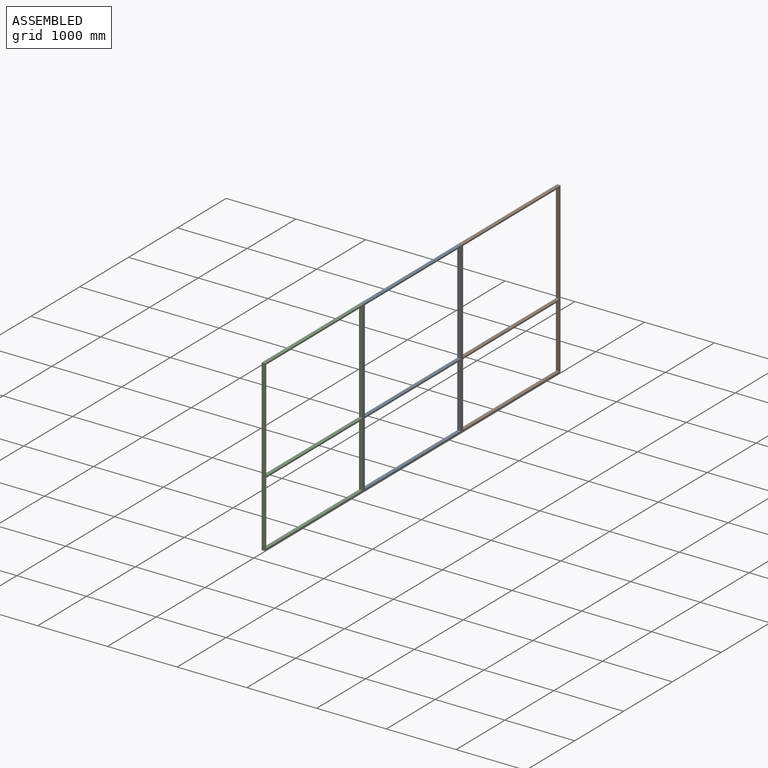
[diagram: assembled view]
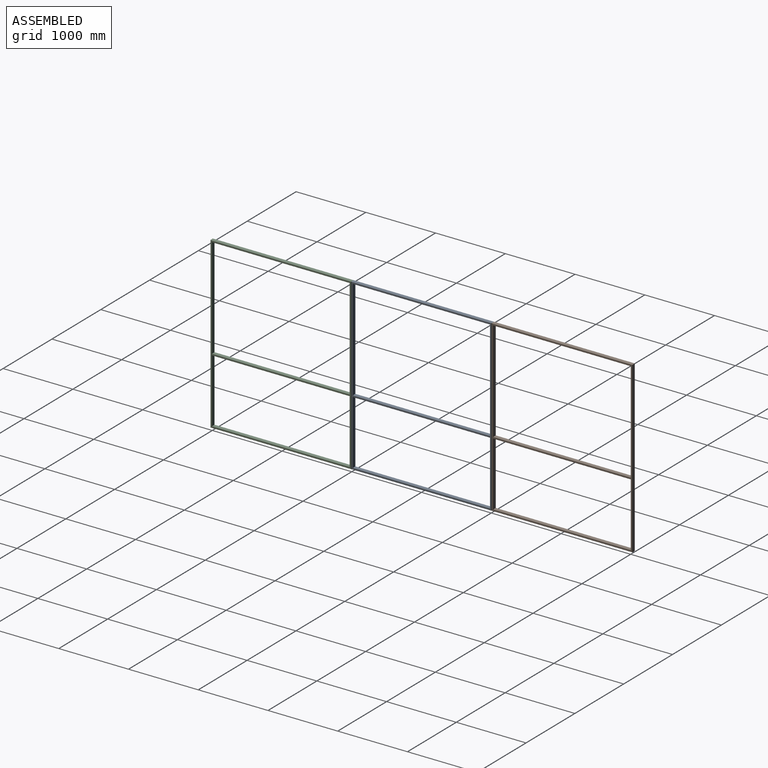
[diagram: assembled view, second angle]
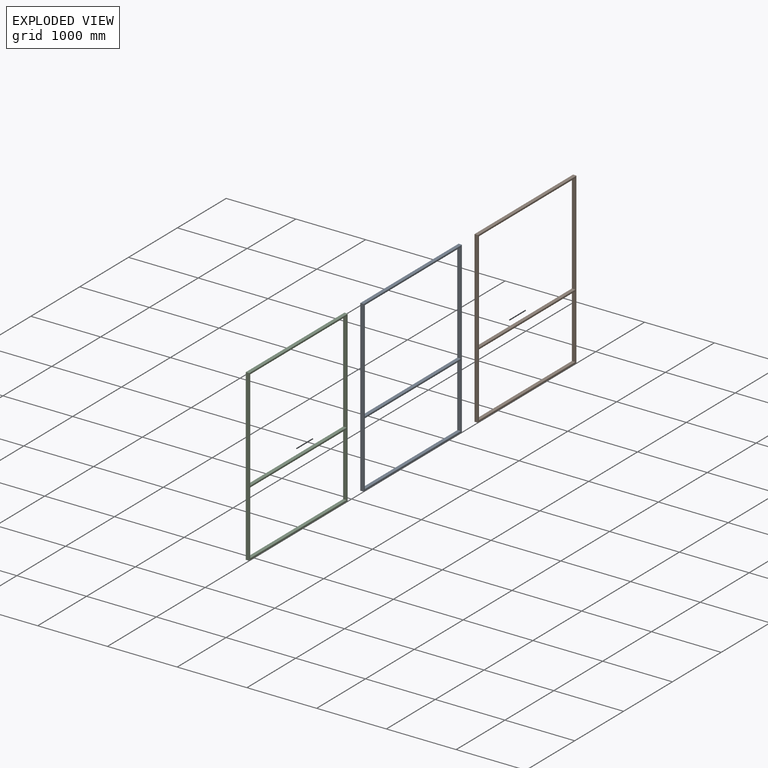
[diagram: exploded view]
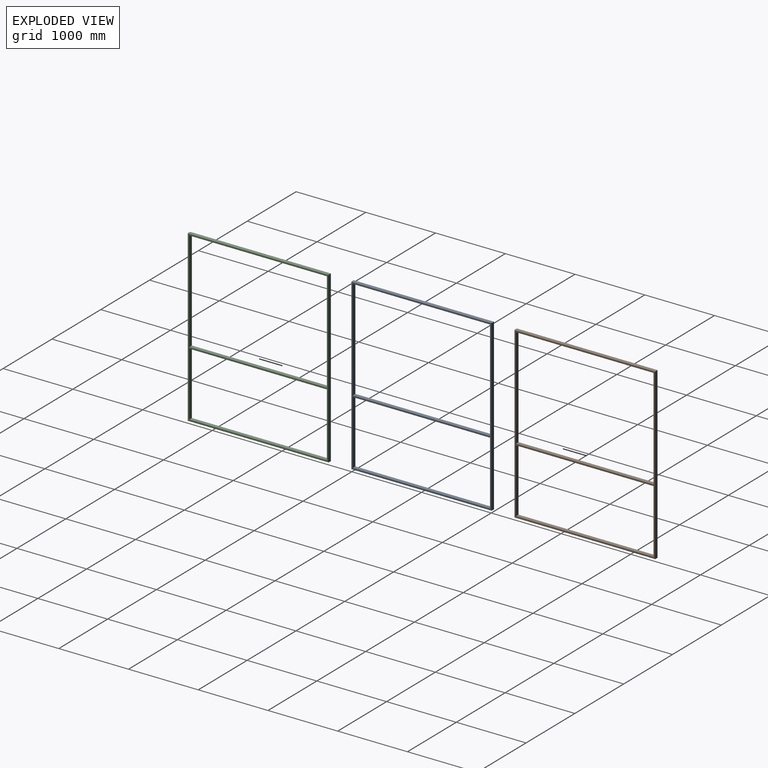
[diagram: exploded view, second angle]
ASSEMBLY  parts=3 mates=2
PART A: 116 faces, bbox 50.8x2013x2432.1 mm
  f0: plane 1962.15x44.45mm, normal (0,0,1), area 87217.6mm2, adj f2,f6,f11,f12
  f1: plane 1962.15x44.45mm, normal (0,0,-1), area 87217.6mm2, adj f2,f5,f12,f14
  f2: plane 1441.45x44.45mm, normal (0,-1,0), area 64072.5mm2, adj f0,f1,f23,f25
  f3: plane 2012.95x44.45mm, normal (0,0,1), area 89475.6mm2, adj f4,f15,f21,f27
  f4: cylinder r=3.17mm len=2012.95mm, axis (0,1,0), area 10027.8mm2, adj f3,f20,f22,f33
  f5: cylinder r=3.17mm len=1968.5mm, axis (0,1,0), area 9797.4mm2, adj f1,f19,f23,f33
  f6: cylinder r=3.17mm len=1968.5mm, axis (0,1,0), area 9797.4mm2, adj f0,f7,f19,f23
  f7: plane 1968.5x19.05mm, normal (1,0,0), area 37499.9mm2, adj f6,f8,f19,f23
  f8: cylinder r=3.17mm len=1968.5mm, axis (0,1,0), area 9797.4mm2, adj f7,f9,f19,f23
  f9: plane 1962.15x44.45mm, normal (0,0,-1), area 87217.6mm2, adj f8,f13,f18,f24
  f10: plane 1968.5x19.05mm, normal (-1,0,0), area 37499.9mm2, adj f11,f13,f17,f25
  f11: cylinder r=3.17mm len=1968.5mm, axis (0,1,0), area 9797.4mm2, adj f0,f10,f17,f25
  f12: plane 1441.45x44.45mm, normal (0,1,0), area 64072.5mm2, adj f0,f1,f17,f19
  f13: cylinder r=3.17mm len=1968.5mm, axis (0,1,0), area 9797.4mm2, adj f9,f10,f17,f25
  f14: cylinder r=3.17mm len=1968.5mm, axis (0,1,0), area 9797.4mm2, adj f1,f17,f25,f29
  f15: cylinder r=3.17mm len=2012.95mm, axis (0,1,0), area 10027.8mm2, adj f3,f16,f26,f29
  f16: cylinder r=3.17mm len=2432.05mm, axis (0,0,1), area 12118mm2, adj f15,f21,f28,f29
  f17: cylinder r=3.17mm len=2387.6mm, axis (0,0,1), area 11772.4mm2, adj f10,f11,f12,f13,f14,f18,f29,f30
  f18: plane 914.4x44.45mm, normal (0,1,0), area 40645.1mm2, adj f9,f17,f19,f31
  f19: cylinder r=3.17mm len=2387.6mm, axis (0,0,1), area 11772.4mm2, adj f5,f6,f7,f8,f12,f18,f32,f33
  f20: cylinder r=3.17mm len=2432.05mm, axis (0,0,1), area 12118mm2, adj f4,f21,f33,f34
  f21: plane 2432.05x44.45mm, normal (0,-1,0), area 108104.6mm2, adj f3,f16,f20,f35
  f22: cylinder r=3.17mm len=2432.05mm, axis (0,0,-1), area 12118mm2, adj f4,f27,f33,f34
  f23: cylinder r=3.17mm len=2387.6mm, axis (0,0,-1), area 11772.4mm2, adj f2,f5,f6,f7,f8,f24,f32,f33
  f24: plane 914.4x44.45mm, normal (0,-1,0), area 40645.1mm2, adj f9,f23,f25,f31
  f25: cylinder r=3.17mm len=2387.6mm, axis (0,0,-1), area 11772.4mm2, adj f2,f10,f11,f13,f14,f24,f29,f30
  f26: cylinder r=3.17mm len=2432.05mm, axis (0,0,-1), area 12118mm2, adj f15,f27,f28,f29
  f27: plane 2432.05x44.45mm, normal (0,1,0), area 108104.6mm2, adj f3,f22,f26,f35
  f28: cylinder r=3.17mm len=2012.95mm, axis (0,-1,0), area 10027.8mm2, adj f16,f26,f29,f35
  f29: plane 2425.7x2006.6mm, normal (-1,0,0), area 167419mm2, adj f14,f15,f16,f17,f25,f26,f28,f30
  f30: cylinder r=3.17mm len=1968.5mm, axis (0,-1,0), area 9797.4mm2, adj f17,f25,f29,f31
  f31: plane 1962.15x44.45mm, normal (0,0,1), area 87217.6mm2, adj f18,f24,f30,f32
  f32: cylinder r=3.17mm len=1968.5mm, axis (0,-1,0), area 9797.4mm2, adj f19,f23,f31,f33
  f33: plane 2425.7x2006.6mm, normal (1,0,0), area 167419mm2, adj f4,f5,f19,f20,f22,f23,f32,f34
  f34: cylinder r=3.17mm len=2012.95mm, axis (0,-1,0), area 10027.8mm2, adj f20,f22,f33,f35
  f35: plane 2012.95x44.45mm, normal (0,0,-1), area 89475.6mm2, adj f21,f27,f28,f34
  f36: cylinder r=2.54mm len=1971.45mm, axis (0,-1,0), area 7852.8mm2, adj f37,f43,f50,f80
  f37: plane 1966.37x41.5mm, normal (0,0,-1), area 81611.3mm2, adj f36,f38,f51,f78
  f38: cylinder r=2.54mm len=1971.45mm, axis (0,-1,0), area 7852.8mm2, adj f37,f39,f52,f76
  f39: plane 2422.75x2003.65mm, normal (-1,0,0), area 141381.1mm2, adj f38,f40,f48,f49,f52,f53,f57,f60
  f40: cylinder r=2.54mm len=2008.73mm, axis (0,-1,0), area 8007.1mm2, adj f39,f41,f53,f72
  f41: plane 2008.73x41.5mm, normal (0,0,1), area 83369.7mm2, adj f40,f42,f54,f71
  f42: cylinder r=2.54mm len=2008.73mm, axis (0,-1,0), area 8007.1mm2, adj f41,f43,f55,f70
  f43: plane 2422.75x2003.65mm, normal (1,0,0), area 141381.1mm2, adj f36,f42,f44,f45,f50,f55,f56,f57
  f44: cylinder r=2.54mm len=21.18mm, axis (0,0,-1), area 77.2mm2, adj f43,f46,f94,f98
  f45: cylinder r=2.54mm len=1446.28mm, axis (0,0,-1), area 5763.4mm2, adj f43,f47,f87,f99,f100
  f46: plane 41.5x21.18mm, normal (0,1,0), area 879.2mm2, adj f44,f48,f93,f95
  f47: plane 1443.56x41.5mm, normal (0,1,0), area 59912.9mm2, adj f45,f49,f86,f99
  f48: cylinder r=2.54mm len=21.18mm, axis (0,0,-1), area 77.2mm2, adj f39,f46,f92,f96
  f49: cylinder r=2.54mm len=1446.28mm, axis (0,0,-1), area 5763.4mm2, adj f39,f47,f85,f97,f99
  f50: cylinder r=2.54mm len=919.23mm, axis (0,0,-1), area 3660.6mm2, adj f36,f43,f51,f88,f91
  f51: plane 916.51x41.5mm, normal (0,1,0), area 38038.4mm2, adj f37,f50,f52,f91
  f52: cylinder r=2.54mm len=919.23mm, axis (0,0,-1), area 3660.6mm2, adj f38,f39,f51,f90,f91
  f53: cylinder r=2.54mm len=2427.83mm, axis (0,0,-1), area 9679.2mm2, adj f39,f40,f54,f84
  f54: plane 2427.83x41.5mm, normal (0,-1,0), area 100763.8mm2, adj f41,f53,f55,f83
  f55: cylinder r=2.54mm len=2427.83mm, axis (0,0,-1), area 9679.2mm2, adj f42,f43,f54,f82
  f56: cylinder r=3.17mm len=10.12mm, axis (0,1,0), area 10.3mm2, adj f43,f57,f58,f80
  f57: plane 46.58x4.65mm, normal (0,-1,0), area 100.8mm2, adj f39,f43,f56,f58,f59,f60,f61,f62
  f58: plane 44.45x10.59mm, normal (0,0,-1), area 470.4mm2, adj f56,f57,f60,f76,f78,f80
  f59: cylinder r=2.54mm len=10.59mm, axis (0,1,0), area 38.6mm2, adj f43,f57,f62,f81
  f60: cylinder r=3.17mm len=10.12mm, axis (0,1,0), area 10.3mm2, adj f39,f57,f58,f76
  f61: cylinder r=2.54mm len=10.59mm, axis (0,1,0), area 38.6mm2, adj f39,f57,f62,f77
  f62: plane 41.5x10.59mm, normal (0,0,1), area 439.6mm2, adj f57,f59,f61,f79
  f63: cylinder r=2.54mm len=10.59mm, axis (0,1,0), area 38.6mm2, adj f43,f64,f68,f81
  f64: plane 41.5x10.59mm, normal (0,0,-1), area 439.6mm2, adj f63,f65,f68,f79
  f65: cylinder r=2.54mm len=10.59mm, axis (0,1,0), area 38.6mm2, adj f39,f64,f68,f77
  f66: plane 44.45x10.59mm, normal (0,0,1), area 470.4mm2, adj f67,f68,f69,f73,f74,f75
  f67: cylinder r=3.17mm len=10.12mm, axis (0,1,0), area 10.3mm2, adj f39,f66,f68,f73
  f68: plane 46.58x4.65mm, normal (0,-1,0), area 100.8mm2, adj f39,f43,f63,f64,f65,f66,f67,f69
  f69: cylinder r=3.17mm len=10.12mm, axis (0,1,0), area 10.3mm2, adj f43,f66,f68,f75
  f70: cylinder r=2.54mm len=2427.83mm, axis (0,0,1), area 9679.2mm2, adj f42,f43,f71,f82
  f71: plane 2427.83x41.5mm, normal (0,1,0), area 100763.8mm2, adj f41,f70,f72,f83
  f72: cylinder r=2.54mm len=2427.83mm, axis (0,0,1), area 9679.2mm2, adj f39,f40,f71,f84
  f73: cylinder r=2.54mm len=1446.28mm, axis (0,0,1), area 5763.4mm2, adj f39,f66,f67,f74,f85
  f74: plane 1443.56x41.5mm, normal (0,-1,0), area 59912.9mm2, adj f66,f73,f75,f86
  f75: cylinder r=2.54mm len=1446.28mm, axis (0,0,1), area 5763.4mm2, adj f43,f66,f69,f74,f87
  f76: cylinder r=2.54mm len=919.23mm, axis (0,0,1), area 3660.6mm2, adj f38,f39,f58,f60,f78
  f77: cylinder r=2.54mm len=21.18mm, axis (0,0,1), area 77.2mm2, adj f39,f61,f65,f79
  f78: plane 916.51x41.5mm, normal (0,-1,0), area 38038.4mm2, adj f37,f58,f76,f80
  f79: plane 41.5x21.18mm, normal (0,-1,0), area 879.2mm2, adj f62,f64,f77,f81
  f80: cylinder r=2.54mm len=919.23mm, axis (0,0,1), area 3660.6mm2, adj f36,f43,f56,f58,f78
  f81: cylinder r=2.54mm len=21.18mm, axis (0,0,1), area 77.2mm2, adj f43,f59,f63,f79
  f82: cylinder r=2.54mm len=2008.73mm, axis (0,1,0), area 8007.1mm2, adj f43,f55,f70,f83
  f83: plane 2008.73x41.5mm, normal (0,0,-1), area 83369.7mm2, adj f54,f71,f82,f84
  f84: cylinder r=2.54mm len=2008.73mm, axis (0,1,0), area 8007.1mm2, adj f39,f53,f72,f83
  f85: cylinder r=2.54mm len=1971.45mm, axis (0,1,0), area 7852.8mm2, adj f39,f49,f73,f86
  f86: plane 1966.37x41.5mm, normal (0,0,1), area 81611.3mm2, adj f47,f74,f85,f87
  f87: cylinder r=2.54mm len=1971.45mm, axis (0,1,0), area 7852.8mm2, adj f43,f45,f75,f86
  f88: cylinder r=3.17mm len=10.12mm, axis (0,1,0), area 10.3mm2, adj f43,f50,f89,f91
  f89: plane 46.58x4.65mm, normal (0,1,0), area 100.8mm2, adj f39,f43,f88,f90,f91,f92,f93,f94
  f90: cylinder r=3.17mm len=10.12mm, axis (0,1,0), area 10.3mm2, adj f39,f52,f89,f91
  f91: plane 44.45x10.59mm, normal (0,0,-1), area 470.4mm2, adj f50,f51,f52,f88,f89,f90
  f92: cylinder r=2.54mm len=10.59mm, axis (0,1,0), area 38.6mm2, adj f39,f48,f89,f93
  f93: plane 41.5x10.59mm, normal (0,0,1), area 439.6mm2, adj f46,f89,f92,f94
  f94: cylinder r=2.54mm len=10.59mm, axis (0,1,0), area 38.6mm2, adj f43,f44,f89,f93
  f95: plane 41.5x10.59mm, normal (0,0,-1), area 439.6mm2, adj f46,f96,f98,f101
  f96: cylinder r=2.54mm len=10.59mm, axis (0,1,0), area 38.6mm2, adj f39,f48,f95,f101
  f97: cylinder r=3.17mm len=10.12mm, axis (0,1,0), area 10.3mm2, adj f39,f49,f99,f101
  f98: cylinder r=2.54mm len=10.59mm, axis (0,1,0), area 38.6mm2, adj f43,f44,f95,f101
  f99: plane 44.45x10.59mm, normal (0,0,1), area 470.4mm2, adj f45,f47,f49,f97,f100,f101
  f100: cylinder r=3.17mm len=10.12mm, axis (0,1,0), area 10.3mm2, adj f43,f45,f99,f101
  f101: plane 46.58x4.65mm, normal (0,1,0), area 100.8mm2, adj f39,f43,f95,f96,f97,f98,f99,f100
  f102: cylinder r=3.17mm len=20.24mm, axis (0,0,1), area 20.7mm2, adj f103,f105,f111,f112
  f103: plane 44.45x21.18mm, normal (0,1,0), area 940.7mm2, adj f102,f104,f105,f106,f107,f109,f110,f111
  f104: cylinder r=3.17mm len=20.24mm, axis (0,0,1), area 20.7mm2, adj f103,f106,f107,f108
  f105: cylinder r=2.54mm len=1962.52mm, axis (0,1,0), area 7829mm2, adj f102,f103,f110,f112,f114,f115
  f106: cylinder r=2.54mm len=1962.52mm, axis (0,1,0), area 7829mm2, adj f103,f104,f108,f110,f113,f114
  f107: cylinder r=2.54mm len=1962.52mm, axis (0,1,0), area 7829mm2, adj f103,f104,f108,f109,f113,f114
  f108: plane 1962.52x16.1mm, normal (1,0,0), area 31603.6mm2, adj f104,f106,f107,f113
  f109: plane 1962.15x41.5mm, normal (0,0,1), area 81436.3mm2, adj f103,f107,f111,f114
  f110: plane 1962.15x41.5mm, normal (0,0,-1), area 81436.3mm2, adj f103,f105,f106,f114
  f111: cylinder r=2.54mm len=1962.52mm, axis (0,1,0), area 7829mm2, adj f102,f103,f109,f112,f114,f115
  f112: plane 1962.52x16.1mm, normal (-1,0,0), area 31603.6mm2, adj f102,f105,f111,f115
  f113: cylinder r=3.17mm len=20.24mm, axis (0,0,-1), area 20.7mm2, adj f106,f107,f108,f114
  f114: plane 44.45x21.18mm, normal (0,-1,0), area 940.7mm2, adj f105,f106,f107,f109,f110,f111,f113,f115
  f115: cylinder r=3.17mm len=20.24mm, axis (0,0,-1), area 20.7mm2, adj f105,f111,f112,f114
PART B: 116 faces, bbox 50.8x2019.3x2432.1 mm
  f0: plane 1968.5x44.45mm, normal (0,0,1), area 87499.8mm2, adj f2,f6,f11,f12
  f1: plane 1968.5x44.45mm, normal (0,0,-1), area 87499.8mm2, adj f2,f5,f12,f14
  f2: plane 1441.45x44.45mm, normal (0,-1,0), area 64072.5mm2, adj f0,f1,f23,f25
  f3: plane 2019.3x44.45mm, normal (0,0,1), area 89757.9mm2, adj f4,f15,f21,f27
  f4: cylinder r=3.17mm len=2019.3mm, axis (0,1,0), area 10059.4mm2, adj f3,f20,f22,f33
  f5: cylinder r=3.17mm len=1974.85mm, axis (0,1,0), area 9829.1mm2, adj f1,f19,f23,f33
  f6: cylinder r=3.17mm len=1974.85mm, axis (0,1,0), area 9829.1mm2, adj f0,f7,f19,f23
  f7: plane 1974.85x19.05mm, normal (1,0,0), area 37620.9mm2, adj f6,f8,f19,f23
  f8: cylinder r=3.17mm len=1974.85mm, axis (0,1,0), area 9829.1mm2, adj f7,f9,f19,f23
  f9: plane 1968.5x44.45mm, normal (0,0,-1), area 87499.8mm2, adj f8,f13,f18,f24
  f10: plane 1974.85x19.05mm, normal (-1,0,0), area 37620.9mm2, adj f11,f13,f17,f25
  f11: cylinder r=3.17mm len=1974.85mm, axis (0,1,0), area 9829.1mm2, adj f0,f10,f17,f25
  f12: plane 1441.45x44.45mm, normal (0,1,0), area 64072.5mm2, adj f0,f1,f17,f19
  f13: cylinder r=3.17mm len=1974.85mm, axis (0,1,0), area 9829.1mm2, adj f9,f10,f17,f25
  f14: cylinder r=3.17mm len=1974.85mm, axis (0,1,0), area 9829.1mm2, adj f1,f17,f25,f29
  f15: cylinder r=3.17mm len=2019.3mm, axis (0,1,0), area 10059.4mm2, adj f3,f16,f26,f29
  f16: cylinder r=3.17mm len=2432.05mm, axis (0,0,1), area 12118mm2, adj f15,f21,f28,f29
  f17: cylinder r=3.17mm len=2387.6mm, axis (0,0,1), area 11772.4mm2, adj f10,f11,f12,f13,f14,f18,f29,f30
  f18: plane 914.4x44.45mm, normal (0,1,0), area 40645.1mm2, adj f9,f17,f19,f31
  f19: cylinder r=3.17mm len=2387.6mm, axis (0,0,1), area 11772.4mm2, adj f5,f6,f7,f8,f12,f18,f32,f33
  f20: cylinder r=3.17mm len=2432.05mm, axis (0,0,1), area 12118mm2, adj f4,f21,f33,f34
  f21: plane 2432.05x44.45mm, normal (0,-1,0), area 108104.6mm2, adj f3,f16,f20,f35
  f22: cylinder r=3.17mm len=2432.05mm, axis (0,0,-1), area 12118mm2, adj f4,f27,f33,f34
  f23: cylinder r=3.17mm len=2387.6mm, axis (0,0,-1), area 11772.4mm2, adj f2,f5,f6,f7,f8,f24,f32,f33
  f24: plane 914.4x44.45mm, normal (0,-1,0), area 40645.1mm2, adj f9,f23,f25,f31
  f25: cylinder r=3.17mm len=2387.6mm, axis (0,0,-1), area 11772.4mm2, adj f2,f10,f11,f13,f14,f24,f29,f30
  f26: cylinder r=3.17mm len=2432.05mm, axis (0,0,-1), area 12118mm2, adj f15,f27,f28,f29
  f27: plane 2432.05x44.45mm, normal (0,1,0), area 108104.6mm2, adj f3,f22,f26,f35
  f28: cylinder r=3.17mm len=2019.3mm, axis (0,-1,0), area 10059.4mm2, adj f16,f26,f29,f35
  f29: plane 2425.7x2012.95mm, normal (-1,0,0), area 167661mm2, adj f14,f15,f16,f17,f25,f26,f28,f30
  f30: cylinder r=3.17mm len=1974.85mm, axis (0,-1,0), area 9829.1mm2, adj f17,f25,f29,f31
  f31: plane 1968.5x44.45mm, normal (0,0,1), area 87499.8mm2, adj f18,f24,f30,f32
  f32: cylinder r=3.17mm len=1974.85mm, axis (0,-1,0), area 9829.1mm2, adj f19,f23,f31,f33
  f33: plane 2425.7x2012.95mm, normal (1,0,0), area 167661mm2, adj f4,f5,f19,f20,f22,f23,f32,f34
  f34: cylinder r=3.17mm len=2019.3mm, axis (0,-1,0), area 10059.4mm2, adj f20,f22,f33,f35
  f35: plane 2019.3x44.45mm, normal (0,0,-1), area 89757.9mm2, adj f21,f27,f28,f34
  f36: cylinder r=2.54mm len=1977.8mm, axis (0,-1,0), area 7878.1mm2, adj f37,f43,f50,f80
  f37: plane 1972.72x41.5mm, normal (0,0,-1), area 81874.8mm2, adj f36,f38,f51,f78
  f38: cylinder r=2.54mm len=1977.8mm, axis (0,-1,0), area 7878.1mm2, adj f37,f39,f52,f76
  f39: plane 2422.75x2010mm, normal (-1,0,0), area 141585.6mm2, adj f38,f40,f48,f49,f52,f53,f57,f60
  f40: cylinder r=2.54mm len=2015.08mm, axis (0,-1,0), area 8032.4mm2, adj f39,f41,f53,f72
  f41: plane 2015.08x41.5mm, normal (0,0,1), area 83633.2mm2, adj f40,f42,f54,f71
  f42: cylinder r=2.54mm len=2015.08mm, axis (0,-1,0), area 8032.4mm2, adj f41,f43,f55,f70
  f43: plane 2422.75x2010mm, normal (1,0,0), area 141585.6mm2, adj f36,f42,f44,f45,f50,f55,f56,f57
  f44: cylinder r=2.54mm len=21.18mm, axis (0,0,-1), area 77.2mm2, adj f43,f46,f94,f98
  f45: cylinder r=2.54mm len=1446.28mm, axis (0,0,-1), area 5763.4mm2, adj f43,f47,f87,f99,f100
  f46: plane 41.5x21.18mm, normal (0,1,0), area 879.2mm2, adj f44,f48,f93,f95
  f47: plane 1443.56x41.5mm, normal (0,1,0), area 59912.9mm2, adj f45,f49,f86,f99
  f48: cylinder r=2.54mm len=21.18mm, axis (0,0,-1), area 77.2mm2, adj f39,f46,f92,f96
  f49: cylinder r=2.54mm len=1446.28mm, axis (0,0,-1), area 5763.4mm2, adj f39,f47,f85,f97,f99
  f50: cylinder r=2.54mm len=919.23mm, axis (0,0,-1), area 3660.6mm2, adj f36,f43,f51,f88,f91
  f51: plane 916.51x41.5mm, normal (0,1,0), area 38038.4mm2, adj f37,f50,f52,f91
  f52: cylinder r=2.54mm len=919.23mm, axis (0,0,-1), area 3660.6mm2, adj f38,f39,f51,f90,f91
  f53: cylinder r=2.54mm len=2427.83mm, axis (0,0,-1), area 9679.2mm2, adj f39,f40,f54,f84
  f54: plane 2427.83x41.5mm, normal (0,-1,0), area 100763.8mm2, adj f41,f53,f55,f83
  f55: cylinder r=2.54mm len=2427.83mm, axis (0,0,-1), area 9679.2mm2, adj f42,f43,f54,f82
  f56: cylinder r=3.17mm len=10.12mm, axis (0,1,0), area 10.3mm2, adj f43,f57,f58,f80
  f57: plane 46.58x4.65mm, normal (0,-1,0), area 100.8mm2, adj f39,f43,f56,f58,f59,f60,f61,f62
  f58: plane 44.45x10.59mm, normal (0,0,-1), area 470.4mm2, adj f56,f57,f60,f76,f78,f80
  f59: cylinder r=2.54mm len=10.59mm, axis (0,1,0), area 38.6mm2, adj f43,f57,f62,f81
  f60: cylinder r=3.17mm len=10.12mm, axis (0,1,0), area 10.3mm2, adj f39,f57,f58,f76
  f61: cylinder r=2.54mm len=10.59mm, axis (0,1,0), area 38.6mm2, adj f39,f57,f62,f77
  f62: plane 41.5x10.59mm, normal (0,0,1), area 439.6mm2, adj f57,f59,f61,f79
  f63: cylinder r=2.54mm len=10.59mm, axis (0,1,0), area 38.6mm2, adj f43,f64,f68,f81
  f64: plane 41.5x10.59mm, normal (0,0,-1), area 439.6mm2, adj f63,f65,f68,f79
  f65: cylinder r=2.54mm len=10.59mm, axis (0,1,0), area 38.6mm2, adj f39,f64,f68,f77
  f66: plane 44.45x10.59mm, normal (0,0,1), area 470.4mm2, adj f67,f68,f69,f73,f74,f75
  f67: cylinder r=3.17mm len=10.12mm, axis (0,1,0), area 10.3mm2, adj f39,f66,f68,f73
  f68: plane 46.58x4.65mm, normal (0,-1,0), area 100.8mm2, adj f39,f43,f63,f64,f65,f66,f67,f69
  f69: cylinder r=3.17mm len=10.12mm, axis (0,1,0), area 10.3mm2, adj f43,f66,f68,f75
  f70: cylinder r=2.54mm len=2427.83mm, axis (0,0,1), area 9679.2mm2, adj f42,f43,f71,f82
  f71: plane 2427.83x41.5mm, normal (0,1,0), area 100763.8mm2, adj f41,f70,f72,f83
  f72: cylinder r=2.54mm len=2427.83mm, axis (0,0,1), area 9679.2mm2, adj f39,f40,f71,f84
  f73: cylinder r=2.54mm len=1446.28mm, axis (0,0,1), area 5763.4mm2, adj f39,f66,f67,f74,f85
  f74: plane 1443.56x41.5mm, normal (0,-1,0), area 59912.9mm2, adj f66,f73,f75,f86
  f75: cylinder r=2.54mm len=1446.28mm, axis (0,0,1), area 5763.4mm2, adj f43,f66,f69,f74,f87
  f76: cylinder r=2.54mm len=919.23mm, axis (0,0,1), area 3660.6mm2, adj f38,f39,f58,f60,f78
  f77: cylinder r=2.54mm len=21.18mm, axis (0,0,1), area 77.2mm2, adj f39,f61,f65,f79
  f78: plane 916.51x41.5mm, normal (0,-1,0), area 38038.4mm2, adj f37,f58,f76,f80
  f79: plane 41.5x21.18mm, normal (0,-1,0), area 879.2mm2, adj f62,f64,f77,f81
  f80: cylinder r=2.54mm len=919.23mm, axis (0,0,1), area 3660.6mm2, adj f36,f43,f56,f58,f78
  f81: cylinder r=2.54mm len=21.18mm, axis (0,0,1), area 77.2mm2, adj f43,f59,f63,f79
  f82: cylinder r=2.54mm len=2015.08mm, axis (0,1,0), area 8032.4mm2, adj f43,f55,f70,f83
  f83: plane 2015.08x41.5mm, normal (0,0,-1), area 83633.2mm2, adj f54,f71,f82,f84
  f84: cylinder r=2.54mm len=2015.08mm, axis (0,1,0), area 8032.4mm2, adj f39,f53,f72,f83
  f85: cylinder r=2.54mm len=1977.8mm, axis (0,1,0), area 7878.1mm2, adj f39,f49,f73,f86
  f86: plane 1972.72x41.5mm, normal (0,0,1), area 81874.8mm2, adj f47,f74,f85,f87
  f87: cylinder r=2.54mm len=1977.8mm, axis (0,1,0), area 7878.1mm2, adj f43,f45,f75,f86
  f88: cylinder r=3.17mm len=10.12mm, axis (0,1,0), area 10.3mm2, adj f43,f50,f89,f91
  f89: plane 46.58x4.65mm, normal (0,1,0), area 100.8mm2, adj f39,f43,f88,f90,f91,f92,f93,f94
  f90: cylinder r=3.17mm len=10.12mm, axis (0,1,0), area 10.3mm2, adj f39,f52,f89,f91
  f91: plane 44.45x10.59mm, normal (0,0,-1), area 470.4mm2, adj f50,f51,f52,f88,f89,f90
  f92: cylinder r=2.54mm len=10.59mm, axis (0,1,0), area 38.6mm2, adj f39,f48,f89,f93
  f93: plane 41.5x10.59mm, normal (0,0,1), area 439.6mm2, adj f46,f89,f92,f94
  f94: cylinder r=2.54mm len=10.59mm, axis (0,1,0), area 38.6mm2, adj f43,f44,f89,f93
  f95: plane 41.5x10.59mm, normal (0,0,-1), area 439.6mm2, adj f46,f96,f98,f101
  f96: cylinder r=2.54mm len=10.59mm, axis (0,1,0), area 38.6mm2, adj f39,f48,f95,f101
  f97: cylinder r=3.17mm len=10.12mm, axis (0,1,0), area 10.3mm2, adj f39,f49,f99,f101
  f98: cylinder r=2.54mm len=10.59mm, axis (0,1,0), area 38.6mm2, adj f43,f44,f95,f101
  f99: plane 44.45x10.59mm, normal (0,0,1), area 470.4mm2, adj f45,f47,f49,f97,f100,f101
  f100: cylinder r=3.17mm len=10.12mm, axis (0,1,0), area 10.3mm2, adj f43,f45,f99,f101
  f101: plane 46.58x4.65mm, normal (0,1,0), area 100.8mm2, adj f39,f43,f95,f96,f97,f98,f99,f100
  f102: cylinder r=3.17mm len=20.24mm, axis (0,0,1), area 20.7mm2, adj f103,f105,f111,f112
  f103: plane 44.45x21.18mm, normal (0,1,0), area 940.7mm2, adj f102,f104,f105,f106,f107,f109,f110,f111
  f104: cylinder r=3.17mm len=20.24mm, axis (0,0,1), area 20.7mm2, adj f103,f106,f107,f108
  f105: cylinder r=2.54mm len=1968.87mm, axis (0,1,0), area 7854.4mm2, adj f102,f103,f110,f112,f114,f115
  f106: cylinder r=2.54mm len=1968.87mm, axis (0,1,0), area 7854.4mm2, adj f103,f104,f108,f110,f113,f114
  f107: cylinder r=2.54mm len=1968.87mm, axis (0,1,0), area 7854.4mm2, adj f103,f104,f108,f109,f113,f114
  f108: plane 1968.87x16.1mm, normal (1,0,0), area 31705.9mm2, adj f104,f106,f107,f113
  f109: plane 1968.5x41.5mm, normal (0,0,1), area 81699.8mm2, adj f103,f107,f111,f114
  f110: plane 1968.5x41.5mm, normal (0,0,-1), area 81699.8mm2, adj f103,f105,f106,f114
  f111: cylinder r=2.54mm len=1968.87mm, axis (0,1,0), area 7854.4mm2, adj f102,f103,f109,f112,f114,f115
  f112: plane 1968.87x16.1mm, normal (-1,0,0), area 31705.9mm2, adj f102,f105,f111,f115
  f113: cylinder r=3.17mm len=20.24mm, axis (0,0,-1), area 20.7mm2, adj f106,f107,f108,f114
  f114: plane 44.45x21.18mm, normal (0,-1,0), area 940.7mm2, adj f105,f106,f107,f109,f110,f111,f113,f115
  f115: cylinder r=3.17mm len=20.24mm, axis (0,0,-1), area 20.7mm2, adj f105,f111,f112,f114
PART C: same geometry as B
PLACE A t=(-905.47,1077.02,-294.29)mm
PLACE B t=(-930.87,3096.32,-294.29)mm
PLACE C t=(-930.87,-935.93,-294.29)mm
MATE fastened C.f27 <-> A.f21  axis (0,1,0) through (-883.25,-923.23,2125.06)mm
MATE fastened B.f21 <-> A.f27  axis (0,-1,0) through (-883.25,1089.72,2125.06)mm
